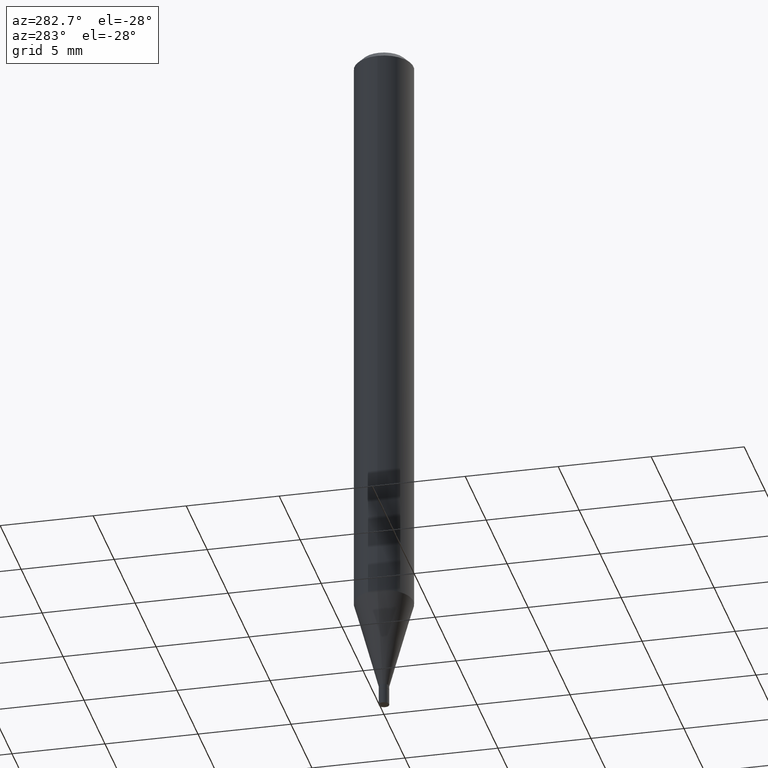
[diagram: clean part render]
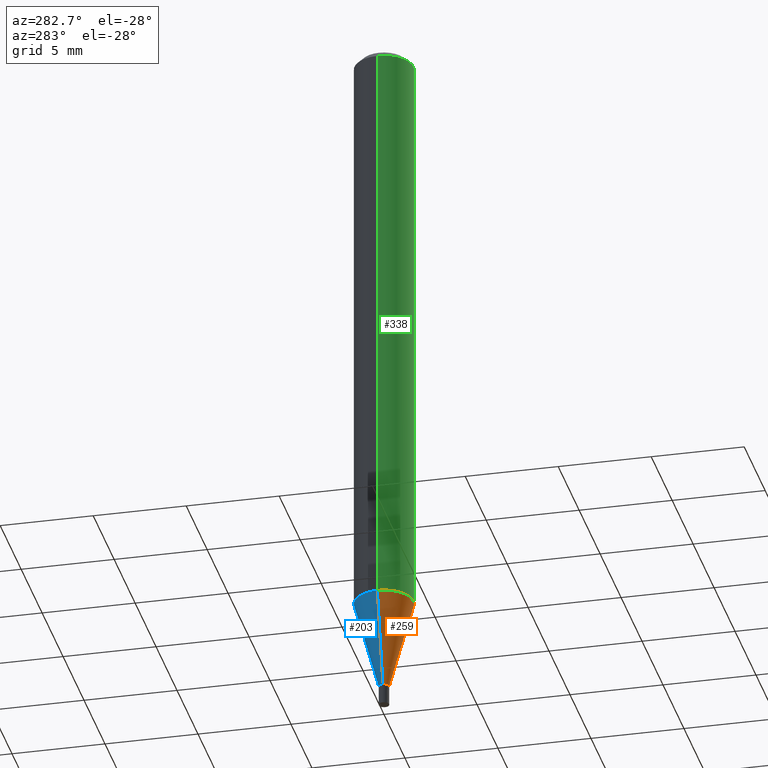
[diagram: same view with three faces highlighted in distinct colors, each labeled with its STEP entity id]
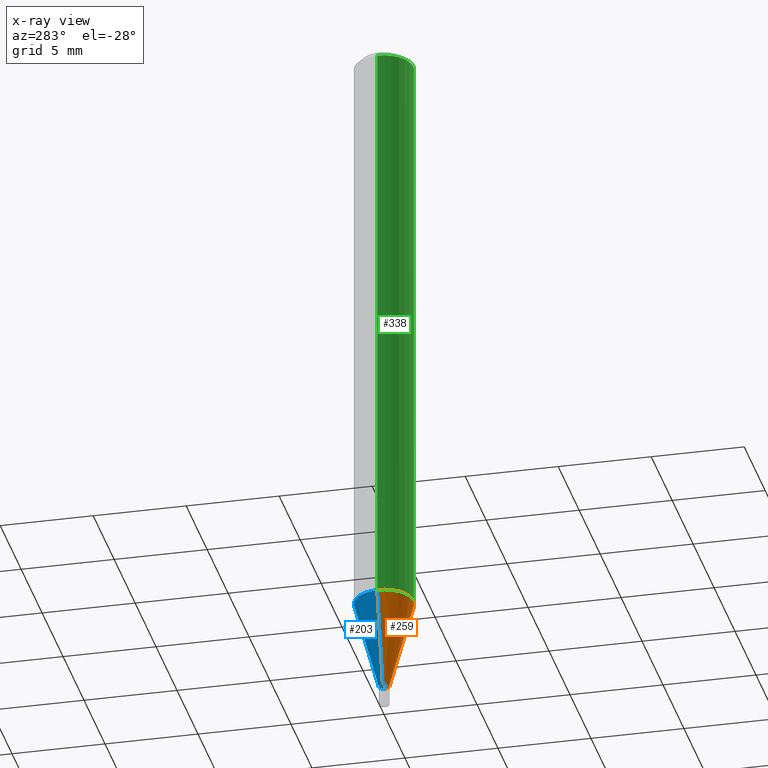
[diagram: x-ray of the same camera — body ghosted, the three highlighted faces saturated]
A machine part, auxiliary view with three faces highlighted in distinct colors.
The next image is the same camera in x-ray (body ghosted, the three faces saturated) — at least one of them is partly hidden behind the body in this view.
Their STEP definitions:

[orange] entity #259 — the highlighted conical surface has half-angle 15 deg.
#11 = DIRECTION ( 'NONE',  ( -2.445468806185136597E-29, 3.491481338843145583E-15, 1.000000000000000000 ) ) ;
#23 = CARTESIAN_POINT ( 'NONE',  ( -0.01099999999999992130, -4.490431422233914869E-15, -1.457000000000000073 ) ) ;
#27 = DIRECTION ( 'NONE',  ( -2.445468806185136597E-29, 3.491481338843145583E-15, 1.000000000000000000 ) ) ;
#61 = CIRCLE ( 'NONE', #425, 0.01099999999999992130 ) ;
#66 = CARTESIAN_POINT ( 'NONE',  ( 3.093027438211846075E-29, -4.416023444557040885E-15, -1.264799383410203149 ) ) ;
#67 = EDGE_CURVE ( 'NONE', #127, #365, #279, .T. ) ;
#78 = VERTEX_POINT ( 'NONE', #460 ) ;
#81 = VERTEX_POINT ( 'NONE', #169 ) ;
#116 = FACE_OUTER_BOUND ( 'NONE', #156, .T. ) ;
#119 = ORIENTED_EDGE ( 'NONE', *, *, #155, .F. ) ;
#120 = DIRECTION ( 'NONE',  ( -2.445468806185136597E-29, 3.491481338843145583E-15, 1.000000000000000000 ) ) ;
#127 = VERTEX_POINT ( 'NONE', #23 ) ;
#130 = DIRECTION ( 'NONE',  ( -0.2588190451025213501, 5.211531920934551042E-15, 0.9659258262890682012 ) ) ;
#144 = DIRECTION ( 'NONE',  ( 1.000000000000000000, -6.982962677686262766E-15, 0.000000000000000000 ) ) ;
#147 = CIRCLE ( 'NONE', #168, 0.06250000000000000000 ) ;
#155 = EDGE_CURVE ( 'NONE', #365, #78, #147, .T. ) ;
#156 = EDGE_LOOP ( 'NONE', ( #300, #345, #375, #119 ) ) ;
#158 = CONICAL_SURFACE ( 'NONE', #332, 0.01099999999999992130, 0.2617993877991500740 ) ;
#162 = CARTESIAN_POINT ( 'NONE',  ( -0.06250000000000000000, -3.971934234706977480E-15, -1.264799383410203149 ) ) ;
#168 = AXIS2_PLACEMENT_3D ( 'NONE', #66, #27, #144 ) ;
#169 = CARTESIAN_POINT ( 'NONE',  ( 0.01099999999999992130, -5.163900900149011871E-15, -1.457000000000000073 ) ) ;
#183 = DIRECTION ( 'NONE',  ( 0.2588190451025213501, 1.565188264969621968E-15, 0.9659258262890682012 ) ) ;
#202 = VECTOR ( 'NONE', #130, 39.37007874015747433 ) ;
#223 = LINE ( 'NONE', #318, #395 ) ;
#233 = DIRECTION ( 'NONE',  ( 1.000000000000000000, -6.982962677686295110E-15, 0.000000000000000000 ) ) ;
#258 = CARTESIAN_POINT ( 'NONE',  ( 3.563048050611744147E-29, -5.087088310694462559E-15, -1.457000000000000073 ) ) ;
#259 = ADVANCED_FACE ( 'NONE', ( #116 ), #158, .T. ) ;
#271 = EDGE_CURVE ( 'NONE', #127, #81, #61, .T. ) ;
#279 = LINE ( 'NONE', #348, #202 ) ;
#296 = DIRECTION ( 'NONE',  ( 1.000000000000000000, -6.982962677686295110E-15, 0.000000000000000000 ) ) ;
#300 = ORIENTED_EDGE ( 'NONE', *, *, #67, .F. ) ;
#318 = CARTESIAN_POINT ( 'NONE',  ( 0.01099999999999992130, -5.163900900149011871E-15, -1.457000000000000073 ) ) ;
#332 = AXIS2_PLACEMENT_3D ( 'NONE', #361, #120, #233 ) ;
#336 = EDGE_CURVE ( 'NONE', #81, #78, #223, .T. ) ;
#345 = ORIENTED_EDGE ( 'NONE', *, *, #271, .T. ) ;
#348 = CARTESIAN_POINT ( 'NONE',  ( -0.01099999999999992130, -5.008928609760852258E-15, -1.457000000000000073 ) ) ;
#361 = CARTESIAN_POINT ( 'NONE',  ( 3.563048050611744147E-29, -5.087088310694462559E-15, -1.457000000000000073 ) ) ;
#365 = VERTEX_POINT ( 'NONE', #162 ) ;
#375 = ORIENTED_EDGE ( 'NONE', *, *, #336, .T. ) ;
#395 = VECTOR ( 'NONE', #183, 39.37007874015747433 ) ;
#425 = AXIS2_PLACEMENT_3D ( 'NONE', #258, #11, #296 ) ;
#460 = CARTESIAN_POINT ( 'NONE',  ( 0.06250000000000000000, -4.852458611912431766E-15, -1.264799383410203149 ) ) ;

[blue] entity #203 — the highlighted conical surface has half-angle 15 deg.
#23 = CARTESIAN_POINT ( 'NONE',  ( -0.01099999999999992130, -4.490431422233914869E-15, -1.457000000000000073 ) ) ;
#32 = CARTESIAN_POINT ( 'NONE',  ( 3.093027438211846075E-29, -4.416023444557040885E-15, -1.264799383410203149 ) ) ;
#45 = FACE_OUTER_BOUND ( 'NONE', #401, .T. ) ;
#63 = CARTESIAN_POINT ( 'NONE',  ( 3.563048050611744147E-29, -5.087088310694462559E-15, -1.457000000000000073 ) ) ;
#67 = EDGE_CURVE ( 'NONE', #127, #365, #279, .T. ) ;
#71 = CONICAL_SURFACE ( 'NONE', #322, 0.01099999999999992130, 0.2617993877991500740 ) ;
#78 = VERTEX_POINT ( 'NONE', #460 ) ;
#81 = VERTEX_POINT ( 'NONE', #169 ) ;
#89 = ORIENTED_EDGE ( 'NONE', *, *, #336, .F. ) ;
#90 = ORIENTED_EDGE ( 'NONE', *, *, #125, .T. ) ;
#93 = EDGE_CURVE ( 'NONE', #78, #365, #445, .T. ) ;
#113 = CARTESIAN_POINT ( 'NONE',  ( 3.563048050611744147E-29, -5.087088310694462559E-15, -1.457000000000000073 ) ) ;
#125 = EDGE_CURVE ( 'NONE', #81, #127, #366, .T. ) ;
#127 = VERTEX_POINT ( 'NONE', #23 ) ;
#130 = DIRECTION ( 'NONE',  ( -0.2588190451025213501, 5.211531920934551042E-15, 0.9659258262890682012 ) ) ;
#162 = CARTESIAN_POINT ( 'NONE',  ( -0.06250000000000000000, -3.971934234706977480E-15, -1.264799383410203149 ) ) ;
#169 = CARTESIAN_POINT ( 'NONE',  ( 0.01099999999999992130, -5.163900900149011871E-15, -1.457000000000000073 ) ) ;
#183 = DIRECTION ( 'NONE',  ( 0.2588190451025213501, 1.565188264969621968E-15, 0.9659258262890682012 ) ) ;
#202 = VECTOR ( 'NONE', #130, 39.37007874015747433 ) ;
#203 = ADVANCED_FACE ( 'NONE', ( #45 ), #71, .T. ) ;
#212 = DIRECTION ( 'NONE',  ( 1.000000000000000000, -6.982962677686295110E-15, 0.000000000000000000 ) ) ;
#213 = ORIENTED_EDGE ( 'NONE', *, *, #93, .F. ) ;
#214 = DIRECTION ( 'NONE',  ( -2.445468806185136597E-29, 3.491481338843145583E-15, 1.000000000000000000 ) ) ;
#217 = DIRECTION ( 'NONE',  ( 1.000000000000000000, -6.982962677686262766E-15, 0.000000000000000000 ) ) ;
#223 = LINE ( 'NONE', #318, #395 ) ;
#226 = DIRECTION ( 'NONE',  ( -2.445468806185136597E-29, 3.491481338843145583E-15, 1.000000000000000000 ) ) ;
#256 = DIRECTION ( 'NONE',  ( -2.445468806185136597E-29, 3.491481338843145583E-15, 1.000000000000000000 ) ) ;
#279 = LINE ( 'NONE', #348, #202 ) ;
#318 = CARTESIAN_POINT ( 'NONE',  ( 0.01099999999999992130, -5.163900900149011871E-15, -1.457000000000000073 ) ) ;
#321 = ORIENTED_EDGE ( 'NONE', *, *, #67, .T. ) ;
#322 = AXIS2_PLACEMENT_3D ( 'NONE', #113, #226, #402 ) ;
#336 = EDGE_CURVE ( 'NONE', #81, #78, #223, .T. ) ;
#339 = AXIS2_PLACEMENT_3D ( 'NONE', #63, #214, #212 ) ;
#348 = CARTESIAN_POINT ( 'NONE',  ( -0.01099999999999992130, -5.008928609760852258E-15, -1.457000000000000073 ) ) ;
#365 = VERTEX_POINT ( 'NONE', #162 ) ;
#366 = CIRCLE ( 'NONE', #339, 0.01099999999999992130 ) ;
#395 = VECTOR ( 'NONE', #183, 39.37007874015747433 ) ;
#401 = EDGE_LOOP ( 'NONE', ( #90, #321, #213, #89 ) ) ;
#402 = DIRECTION ( 'NONE',  ( 1.000000000000000000, -6.982962677686295110E-15, 0.000000000000000000 ) ) ;
#431 = AXIS2_PLACEMENT_3D ( 'NONE', #32, #256, #217 ) ;
#445 = CIRCLE ( 'NONE', #431, 0.06250000000000000000 ) ;
#460 = CARTESIAN_POINT ( 'NONE',  ( 0.06250000000000000000, -4.852458611912431766E-15, -1.264799383410203149 ) ) ;

[green] entity #338 — the highlighted cylindrical surface (edge-blend (fillet) strip) has radius 1.5875 mm, axis along (-0, 0, 1).
#22 = DIRECTION ( 'NONE',  ( -2.445468806185136877E-29, 3.491481338843145188E-15, 1.000000000000000000 ) ) ;
#27 = DIRECTION ( 'NONE',  ( -2.445468806185136597E-29, 3.491481338843145583E-15, 1.000000000000000000 ) ) ;
#28 = CIRCLE ( 'NONE', #297, 0.06250000000000000000 ) ;
#36 = DIRECTION ( 'NONE',  ( 1.000000000000000000, -6.982962677686266711E-15, 0.000000000000000000 ) ) ;
#51 = EDGE_CURVE ( 'NONE', #365, #456, #251, .T. ) ;
#60 = CARTESIAN_POINT ( 'NONE',  ( 0.06250000000000000000, -4.364351673553916694E-16, 3.047610484872459871E-30 ) ) ;
#66 = CARTESIAN_POINT ( 'NONE',  ( 3.093027438211846075E-29, -4.416023444557040885E-15, -1.264799383410203149 ) ) ;
#68 = VERTEX_POINT ( 'NONE', #316 ) ;
#73 = ORIENTED_EDGE ( 'NONE', *, *, #155, .T. ) ;
#78 = VERTEX_POINT ( 'NONE', #460 ) ;
#82 = DIRECTION ( 'NONE',  ( 1.000000000000000000, -6.982962677686266711E-15, 4.876176775795935793E-29 ) ) ;
#83 = EDGE_CURVE ( 'NONE', #78, #68, #278, .T. ) ;
#100 = CARTESIAN_POINT ( 'NONE',  ( -0.06250000000000000000, 4.440892098500626162E-16, -3.074334431409316114E-30 ) ) ;
#139 = VECTOR ( 'NONE', #250, 39.37007874015748143 ) ;
#140 = ORIENTED_EDGE ( 'NONE', *, *, #83, .T. ) ;
#144 = DIRECTION ( 'NONE',  ( 1.000000000000000000, -6.982962677686262766E-15, 0.000000000000000000 ) ) ;
#145 = DIRECTION ( 'NONE',  ( -2.445468806185136597E-29, 3.491481338843145583E-15, 1.000000000000000000 ) ) ;
#147 = CIRCLE ( 'NONE', #168, 0.06250000000000000000 ) ;
#155 = EDGE_CURVE ( 'NONE', #365, #78, #147, .T. ) ;
#159 = ORIENTED_EDGE ( 'NONE', *, *, #51, .F. ) ;
#160 = CARTESIAN_POINT ( 'NONE',  ( 3.668203209277705088E-31, -5.237222008264718399E-17, -0.01499999999999999944 ) ) ;
#162 = CARTESIAN_POINT ( 'NONE',  ( -0.06250000000000000000, -3.971934234706977480E-15, -1.264799383410203149 ) ) ;
#168 = AXIS2_PLACEMENT_3D ( 'NONE', #66, #27, #144 ) ;
#208 = EDGE_CURVE ( 'NONE', #456, #68, #28, .T. ) ;
#250 = DIRECTION ( 'NONE',  ( -2.445468806185136877E-29, 3.491481338843145188E-15, 1.000000000000000000 ) ) ;
#251 = LINE ( 'NONE', #100, #139 ) ;
#260 = ORIENTED_EDGE ( 'NONE', *, *, #208, .F. ) ;
#263 = CARTESIAN_POINT ( 'NONE',  ( 0.000000000000000000, 0.000000000000000000, 0.000000000000000000 ) ) ;
#272 = VECTOR ( 'NONE', #22, 39.37007874015748143 ) ;
#277 = CARTESIAN_POINT ( 'NONE',  ( -0.06250000000000000000, -1.790108622469781169E-15, -0.01499999999999999944 ) ) ;
#278 = LINE ( 'NONE', #60, #272 ) ;
#297 = AXIS2_PLACEMENT_3D ( 'NONE', #160, #145, #36 ) ;
#316 = CARTESIAN_POINT ( 'NONE',  ( 0.06250000000000000000, -4.888073874380388472E-16, -0.01499999999999999944 ) ) ;
#338 = ADVANCED_FACE ( 'NONE', ( #465 ), #435, .T. ) ;
#365 = VERTEX_POINT ( 'NONE', #162 ) ;
#405 = DIRECTION ( 'NONE',  ( -2.445468806185136597E-29, 3.491481338843145583E-15, 1.000000000000000000 ) ) ;
#419 = EDGE_LOOP ( 'NONE', ( #159, #73, #140, #260 ) ) ;
#435 = CYLINDRICAL_SURFACE ( 'NONE', #448, 0.06250000000000000000 ) ;
#448 = AXIS2_PLACEMENT_3D ( 'NONE', #263, #405, #82 ) ;
#456 = VERTEX_POINT ( 'NONE', #277 ) ;
#460 = CARTESIAN_POINT ( 'NONE',  ( 0.06250000000000000000, -4.852458611912431766E-15, -1.264799383410203149 ) ) ;
#465 = FACE_OUTER_BOUND ( 'NONE', #419, .T. ) ;